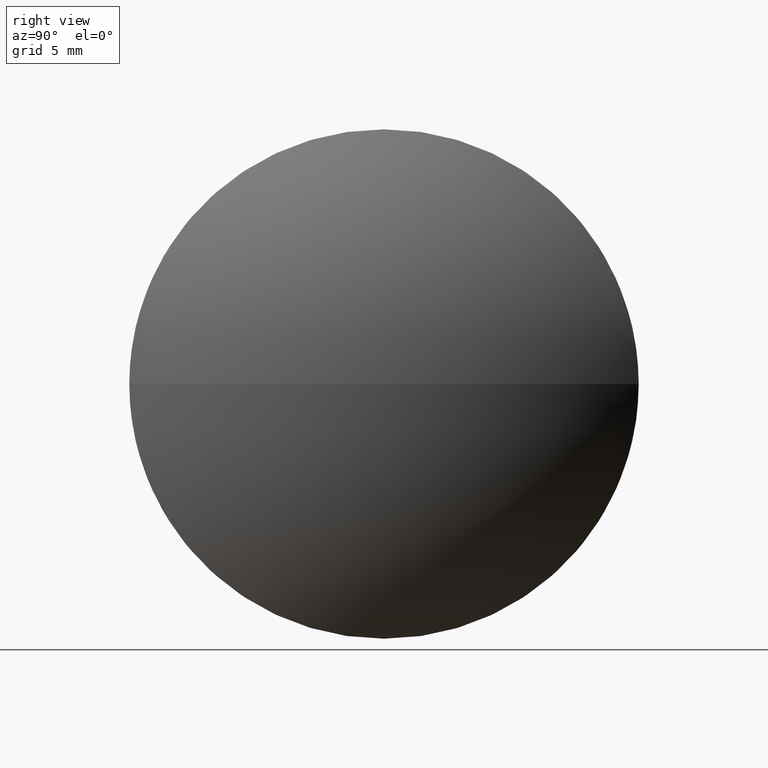
[diagram: clean part render]
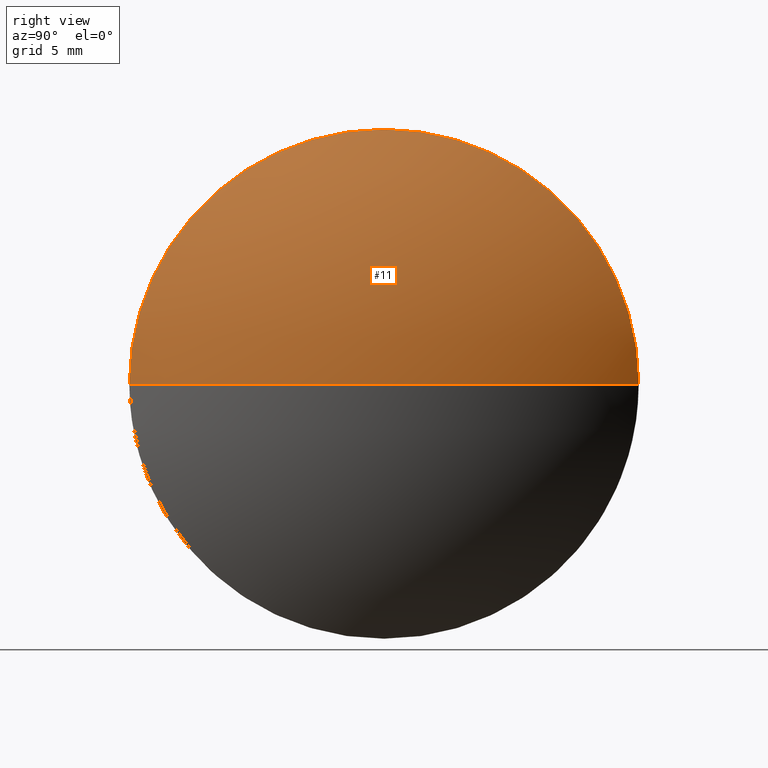
[diagram: same view with one face highlighted and labeled with its STEP entity id]
A machine part, right view. The second image highlights one B-rep face of the part: STEP entity #11.
In plain terms, the highlighted spherical surface has radius 20.662 mm.
Its self-contained STEP definition (entity closure, byte-faithful):
#2 = CARTESIAN_POINT ( 'NONE',  ( 565.5535889143861800, 143.5724403089787700, -1.530808498934189200E-015 ) ) ;
#5 = AXIS2_PLACEMENT_3D ( 'NONE', #68, #126, #48 ) ;
#9 = CIRCLE ( 'NONE', #76, 12.50000000000001100 ) ;
#11 = ADVANCED_FACE ( 'NONE', ( #153 ), #87, .T. ) ;
#14 = EDGE_CURVE ( 'NONE', #143, #108, #185, .T. ) ;
#15 = CARTESIAN_POINT ( 'NONE',  ( 549.1015817884954200, 156.0724403089787700, 0.0000000000000000000 ) ) ;
#17 = DIRECTION ( 'NONE',  ( 0.0000000000000000000, 1.000000000000000000, 0.0000000000000000000 ) ) ;
#24 = CARTESIAN_POINT ( 'NONE',  ( 565.5535889143861800, 156.0724403089788000, 0.0000000000000000000 ) ) ;
#28 = AXIS2_PLACEMENT_3D ( 'NONE', #15, #107, #17 ) ;
#33 = VERTEX_POINT ( 'NONE', #2 ) ;
#35 = CARTESIAN_POINT ( 'NONE',  ( 565.5535889143861800, 156.0724403089788000, 12.50000000000001100 ) ) ;
#39 = DIRECTION ( 'NONE',  ( 0.0000000000000000000, 0.0000000000000000000, 1.000000000000000000 ) ) ;
#40 = AXIS2_PLACEMENT_3D ( 'NONE', #114, #129, #110 ) ;
#48 = DIRECTION ( 'NONE',  ( 1.000000000000000000, 0.0000000000000000000, 0.0000000000000000000 ) ) ;
#53 = CARTESIAN_POINT ( 'NONE',  ( 569.7635889143862200, 156.0724403089787700, 0.0000000000000000000 ) ) ;
#55 = VERTEX_POINT ( 'NONE', #35 ) ;
#58 = EDGE_CURVE ( 'NONE', #143, #33, #135, .T. ) ;
#64 = CIRCLE ( 'NONE', #94, 12.50000000000001100 ) ;
#65 = ORIENTED_EDGE ( 'NONE', *, *, #168, .F. ) ;
#68 = CARTESIAN_POINT ( 'NONE',  ( 549.1015817884954200, 156.0724403089787700, 0.0000000000000000000 ) ) ;
#76 = AXIS2_PLACEMENT_3D ( 'NONE', #133, #154, #171 ) ;
#87 = SPHERICAL_SURFACE ( 'NONE', #28, 20.66200712589076400 ) ;
#88 = DIRECTION ( 'NONE',  ( -1.000000000000000000, -0.0000000000000000000, -0.0000000000000000000 ) ) ;
#94 = AXIS2_PLACEMENT_3D ( 'NONE', #24, #88, #39 ) ;
#107 = DIRECTION ( 'NONE',  ( -0.0000000000000000000, 0.0000000000000000000, -1.000000000000000000 ) ) ;
#108 = VERTEX_POINT ( 'NONE', #109 ) ;
#109 = CARTESIAN_POINT ( 'NONE',  ( 565.5535889143861800, 168.5724403089787700, 0.0000000000000000000 ) ) ;
#110 = DIRECTION ( 'NONE',  ( 0.0000000000000000000, 1.000000000000000000, 1.224646799147353700E-016 ) ) ;
#114 = CARTESIAN_POINT ( 'NONE',  ( 549.1015817884954200, 156.0724403089787700, 0.0000000000000000000 ) ) ;
#126 = DIRECTION ( 'NONE',  ( -0.0000000000000000000, 0.0000000000000000000, 1.000000000000000000 ) ) ;
#129 = DIRECTION ( 'NONE',  ( 0.0000000000000000000, 1.224646799147353200E-016, -1.000000000000000000 ) ) ;
#133 = CARTESIAN_POINT ( 'NONE',  ( 565.5535889143861800, 156.0724403089788000, 0.0000000000000000000 ) ) ;
#135 = CIRCLE ( 'NONE', #40, 20.66200712589075300 ) ;
#139 = EDGE_LOOP ( 'NONE', ( #160, #142, #167, #65 ) ) ;
#142 = ORIENTED_EDGE ( 'NONE', *, *, #14, .T. ) ;
#143 = VERTEX_POINT ( 'NONE', #53 ) ;
#153 = FACE_OUTER_BOUND ( 'NONE', #139, .T. ) ;
#154 = DIRECTION ( 'NONE',  ( -1.000000000000000000, -0.0000000000000000000, -0.0000000000000000000 ) ) ;
#160 = ORIENTED_EDGE ( 'NONE', *, *, #58, .F. ) ;
#167 = ORIENTED_EDGE ( 'NONE', *, *, #172, .F. ) ;
#168 = EDGE_CURVE ( 'NONE', #33, #55, #9, .T. ) ;
#171 = DIRECTION ( 'NONE',  ( 0.0000000000000000000, 0.0000000000000000000, 1.000000000000000000 ) ) ;
#172 = EDGE_CURVE ( 'NONE', #55, #108, #64, .T. ) ;
#185 = CIRCLE ( 'NONE', #5, 20.66200712589072500 ) ;